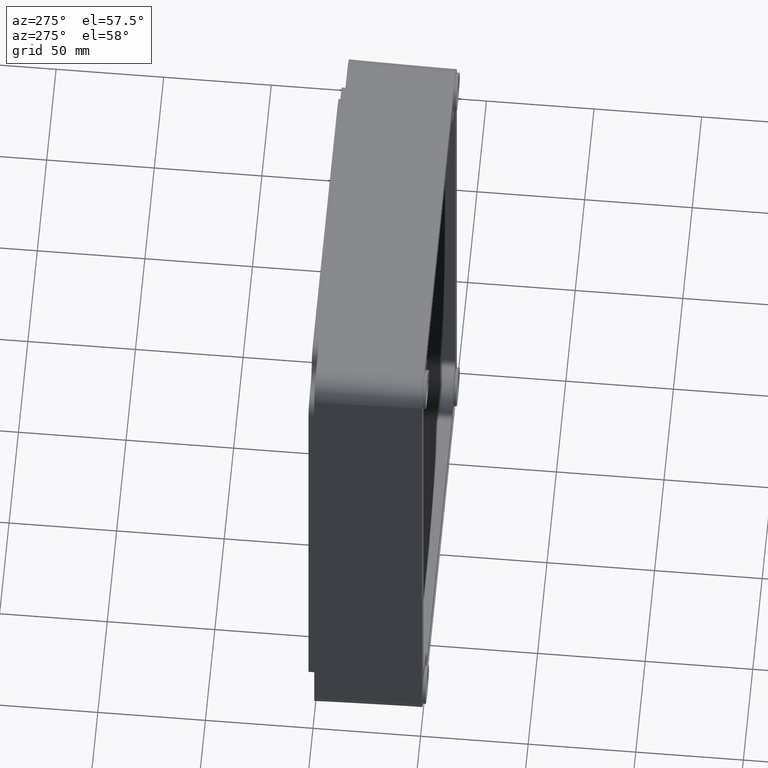
[diagram: clean part render]
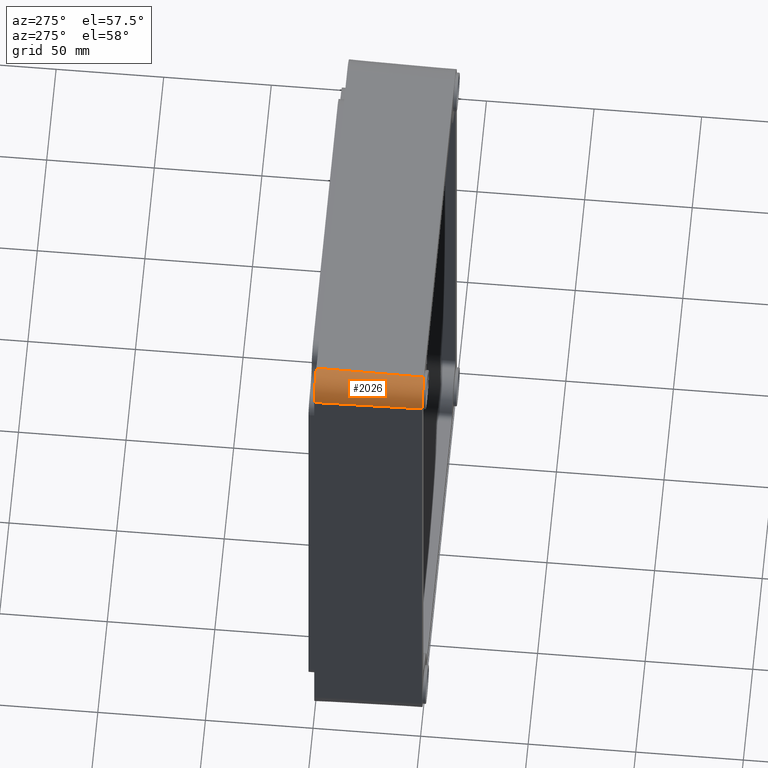
[diagram: same view with one face highlighted and labeled with its STEP entity id]
A machine part, auxiliary view. The second image highlights one B-rep face of the part: STEP entity #2026.
In plain terms, the highlighted conical surface has half-angle 1 deg.
Its self-contained STEP definition (entity closure, byte-faithful):
#15 = DIRECTION ( 'NONE',  ( 0.0000000000000000000, 0.0000000000000000000, 1.000000000000000000 ) ) ;
#89 = CARTESIAN_POINT ( 'NONE',  ( -82.00000000000001400, 0.0000000000000000000, 138.5000000000000000 ) ) ;
#144 = VERTEX_POINT ( 'NONE', #89 ) ;
#313 = AXIS2_PLACEMENT_3D ( 'NONE', #351, #2147, #1467 ) ;
#332 = AXIS2_PLACEMENT_3D ( 'NONE', #1150, #459, #15 ) ;
#351 = CARTESIAN_POINT ( 'NONE',  ( -82.00000000000001400, -50.00000000000000000, 127.0000000000000000 ) ) ;
#459 = DIRECTION ( 'NONE',  ( 0.0000000000000000000, 1.000000000000000000, 0.0000000000000000000 ) ) ;
#592 = LINE ( 'NONE', #1627, #2490 ) ;
#612 = CARTESIAN_POINT ( 'NONE',  ( -93.50000000000002800, 0.0000000000000000000, 127.0000000000000000 ) ) ;
#622 = ORIENTED_EDGE ( 'NONE', *, *, #2221, .F. ) ;
#761 = CONICAL_SURFACE ( 'NONE', #332, 11.50000000000001100, 0.01745329251994333400 ) ;
#1046 = ORIENTED_EDGE ( 'NONE', *, *, #1305, .F. ) ;
#1053 = DIRECTION ( 'NONE',  ( 0.0000000000000000000, 1.000000000000000000, 0.0000000000000000000 ) ) ;
#1072 = AXIS2_PLACEMENT_3D ( 'NONE', #2366, #1053, #2156 ) ;
#1075 = VERTEX_POINT ( 'NONE', #2809 ) ;
#1150 = CARTESIAN_POINT ( 'NONE',  ( -82.00000000000001400, 0.0000000000000000000, 127.0000000000000000 ) ) ;
#1178 = CIRCLE ( 'NONE', #313, 10.62724675358911400 ) ;
#1305 = EDGE_CURVE ( 'NONE', #1075, #2801, #2089, .T. ) ;
#1328 = DIRECTION ( 'NONE',  ( -0.01745240643728355000, 0.9998476951563911600, 0.0000000000000000000 ) ) ;
#1458 = FACE_OUTER_BOUND ( 'NONE', #2167, .T. ) ;
#1467 = DIRECTION ( 'NONE',  ( 0.0000000000000000000, 0.0000000000000000000, 1.000000000000000000 ) ) ;
#1595 = CIRCLE ( 'NONE', #1072, 11.50000000000001100 ) ;
#1605 = VERTEX_POINT ( 'NONE', #2082 ) ;
#1616 = EDGE_CURVE ( 'NONE', #1605, #144, #592, .T. ) ;
#1627 = CARTESIAN_POINT ( 'NONE',  ( -82.00000000000001400, 0.0000000000000000000, 138.5000000000000000 ) ) ;
#1761 = ORIENTED_EDGE ( 'NONE', *, *, #1616, .T. ) ;
#1801 = VECTOR ( 'NONE', #1328, 1000.000000000000200 ) ;
#2026 = ADVANCED_FACE ( 'NONE', ( #1458 ), #761, .T. ) ;
#2082 = CARTESIAN_POINT ( 'NONE',  ( -82.00000000000001400, -50.00000000000000000, 137.6272467535891300 ) ) ;
#2089 = LINE ( 'NONE', #2244, #1801 ) ;
#2109 = ORIENTED_EDGE ( 'NONE', *, *, #2337, .T. ) ;
#2147 = DIRECTION ( 'NONE',  ( 0.0000000000000000000, 1.000000000000000000, 0.0000000000000000000 ) ) ;
#2156 = DIRECTION ( 'NONE',  ( 0.0000000000000000000, 0.0000000000000000000, 1.000000000000000000 ) ) ;
#2167 = EDGE_LOOP ( 'NONE', ( #622, #1046, #2109, #1761 ) ) ;
#2221 = EDGE_CURVE ( 'NONE', #2801, #144, #1595, .T. ) ;
#2244 = CARTESIAN_POINT ( 'NONE',  ( -93.50000000000002800, 0.0000000000000000000, 127.0000000000000000 ) ) ;
#2337 = EDGE_CURVE ( 'NONE', #1075, #1605, #1178, .T. ) ;
#2366 = CARTESIAN_POINT ( 'NONE',  ( -82.00000000000001400, 0.0000000000000000000, 127.0000000000000000 ) ) ;
#2490 = VECTOR ( 'NONE', #2786, 1000.000000000000200 ) ;
#2786 = DIRECTION ( 'NONE',  ( 0.0000000000000000000, 0.9998476951563911600, 0.01745240643728355000 ) ) ;
#2801 = VERTEX_POINT ( 'NONE', #612 ) ;
#2809 = CARTESIAN_POINT ( 'NONE',  ( -92.62724675358914800, -50.00000000000000000, 127.0000000000000000 ) ) ;